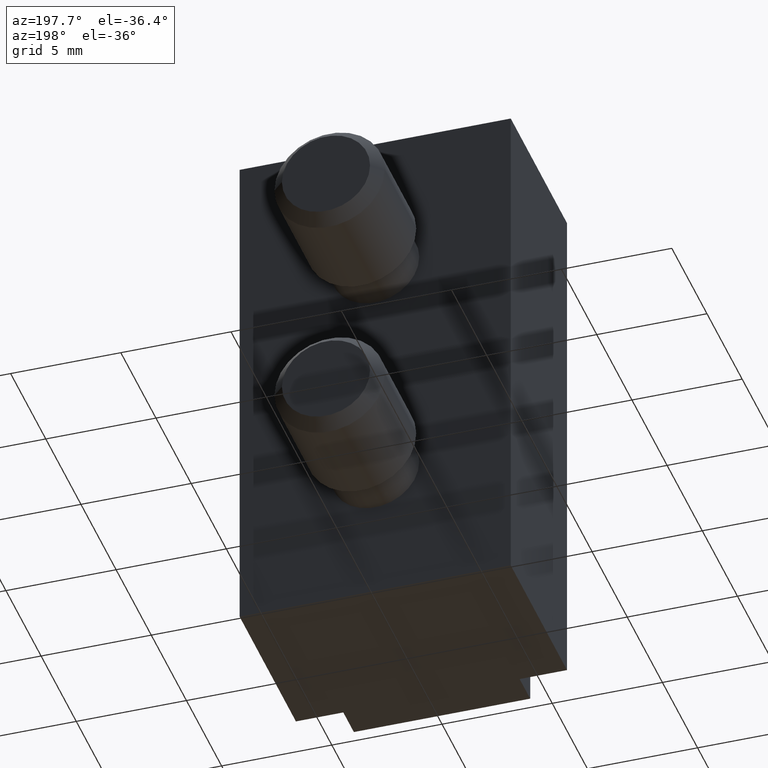
[diagram: clean part render]
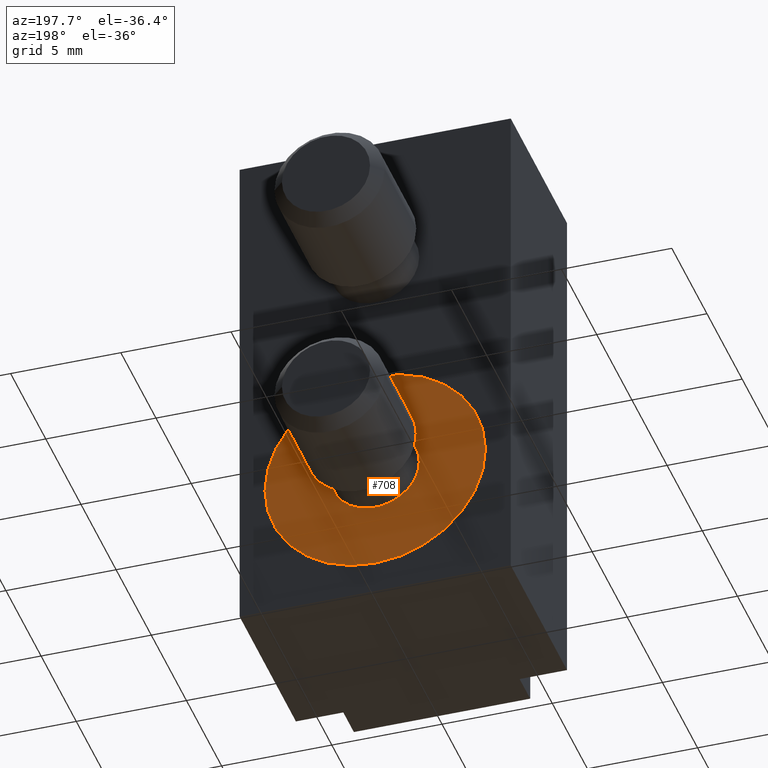
[diagram: same view with one face highlighted and labeled with its STEP entity id]
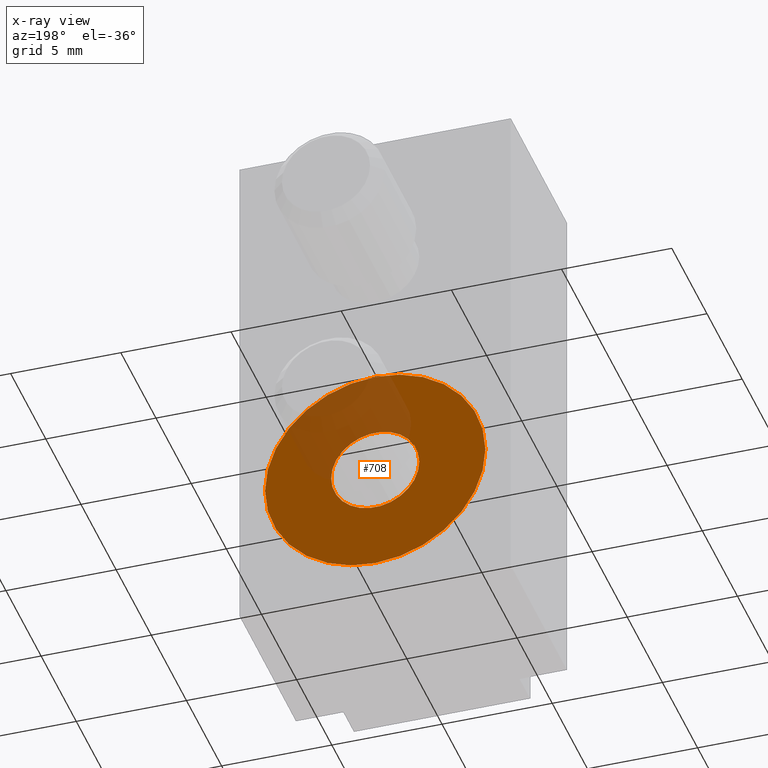
[diagram: x-ray of the same camera — body ghosted, the highlighted face saturated]
A machine part, auxiliary view. The second image highlights one B-rep face of the part: STEP entity #708.
The next image is the same camera in x-ray: the body ghosted, the highlighted face saturated — about 25% of this face is hidden behind the body in this view.
In plain terms, the highlighted planar face has unit normal (0, -1, -0).
Its self-contained STEP definition (entity closure, byte-faithful):
#45=FACE_BOUND('',#165,.T.);
#70=PLANE('',#858);
#112=FACE_OUTER_BOUND('',#164,.T.);
#164=EDGE_LOOP('',(#646));
#165=EDGE_LOOP('',(#647));
#296=CIRCLE('',#841,2.);
#305=CIRCLE('',#859,5.);
#361=VERTEX_POINT('',#1451);
#370=VERTEX_POINT('',#1484);
#449=EDGE_CURVE('',#361,#361,#296,.T.);
#463=EDGE_CURVE('',#370,#370,#305,.T.);
#646=ORIENTED_EDGE('',*,*,#463,.F.);
#647=ORIENTED_EDGE('',*,*,#449,.F.);
#708=ADVANCED_FACE('',(#112,#45),#70,.F.);
#841=AXIS2_PLACEMENT_3D('',#1453,#1025,#1026);
#858=AXIS2_PLACEMENT_3D('',#1483,#1064,#1065);
#859=AXIS2_PLACEMENT_3D('',#1485,#1066,#1067);
#1025=DIRECTION('center_axis',(0.,0.,1.));
#1026=DIRECTION('ref_axis',(-1.,0.,0.));
#1064=DIRECTION('center_axis',(0.,0.,-1.));
#1065=DIRECTION('ref_axis',(-1.,0.,0.));
#1066=DIRECTION('center_axis',(0.,0.,-1.));
#1067=DIRECTION('ref_axis',(-1.,0.,0.));
#1451=CARTESIAN_POINT('',(2.,2.44929359829471E-16,7.9));
#1453=CARTESIAN_POINT('Origin',(0.,0.,7.9));
#1483=CARTESIAN_POINT('Origin',(0.,0.,7.9));
#1484=CARTESIAN_POINT('',(5.,6.12323399573677E-16,7.9));
#1485=CARTESIAN_POINT('Origin',(0.,0.,7.9));